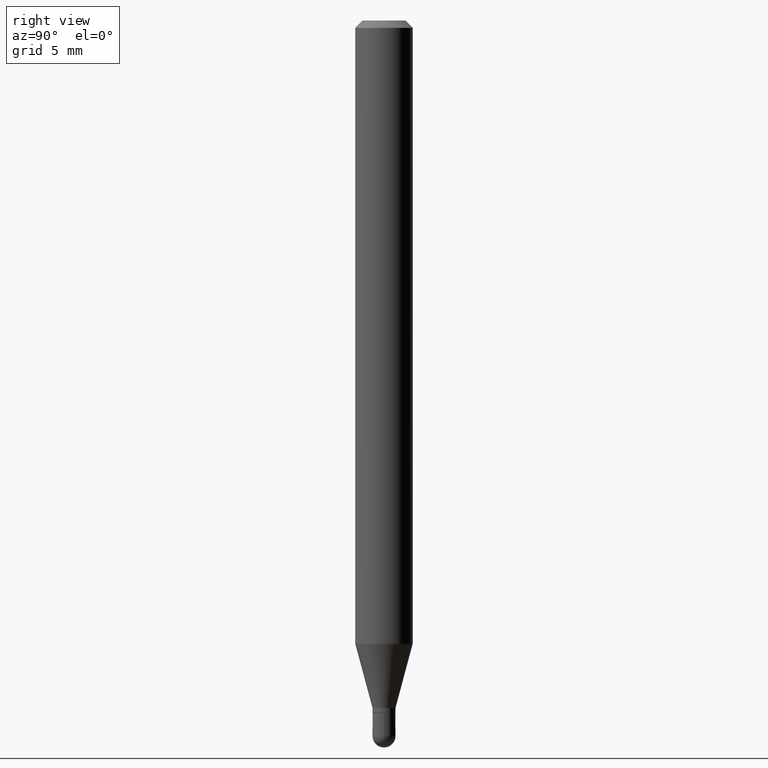
[diagram: clean part render]
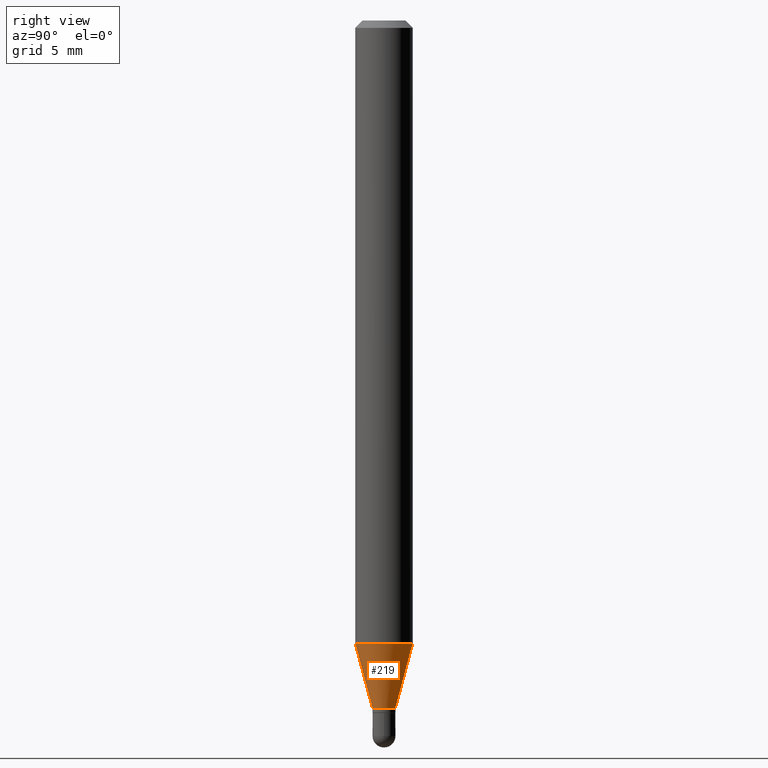
[diagram: same view with one face highlighted and labeled with its STEP entity id]
A machine part, right view. The second image highlights one B-rep face of the part: STEP entity #219.
In plain terms, the highlighted conical surface has half-angle 15 deg.
Its self-contained STEP definition (entity closure, byte-faithful):
#5 = DIRECTION ( 'NONE',  ( -2.445525843005388911E-29, 3.491399658870209934E-15, 1.000000000000000000 ) ) ;
#20 = CARTESIAN_POINT ( 'NONE',  ( 3.460663620436925760E-29, -4.940679657267234078E-15, -1.415099999999999802 ) ) ;
#29 = ORIENTED_EDGE ( 'NONE', *, *, #31, .T. ) ;
#31 = EDGE_CURVE ( 'NONE', #331, #498, #355, .T. ) ;
#64 = CARTESIAN_POINT ( 'NONE',  ( -1.647979191933606997E-16, -0.02360000000000486015, -1.415099999999999802 ) ) ;
#86 = DIRECTION ( 'NONE',  ( 1.839019923739603471E-15, 0.2588190451025254024, 0.9659258262890670910 ) ) ;
#95 = DIRECTION ( 'NONE',  ( -6.982962677686265922E-15, -1.000000000000000000, 0.000000000000000000 ) ) ;
#100 = ORIENTED_EDGE ( 'NONE', *, *, #160, .T. ) ;
#140 = CARTESIAN_POINT ( 'NONE',  ( 2.936317855528941933E-16, 0.02359999999999497916, -1.415099999999999802 ) ) ;
#145 = ORIENTED_EDGE ( 'NONE', *, *, #179, .F. ) ;
#147 = DIRECTION ( 'NONE',  ( -6.982962677686265922E-15, -1.000000000000000000, 0.000000000000000000 ) ) ;
#153 = DIRECTION ( 'NONE',  ( -2.445525843005388911E-29, 3.491399658870209934E-15, 1.000000000000000000 ) ) ;
#160 = EDGE_CURVE ( 'NONE', #498, #378, #448, .T. ) ;
#171 = CARTESIAN_POINT ( 'NONE',  ( -1.647979191933606997E-16, -0.02360000000000486015, -1.415099999999999802 ) ) ;
#179 = EDGE_CURVE ( 'NONE', #367, #378, #444, .T. ) ;
#192 = FACE_OUTER_BOUND ( 'NONE', #230, .T. ) ;
#213 = CARTESIAN_POINT ( 'NONE',  ( 4.195754854663702585E-16, 0.05904999999999549498, -1.282798798871683799 ) ) ;
#219 = ADVANCED_FACE ( 'NONE', ( #192 ), #322, .T. ) ;
#228 = LINE ( 'NONE', #64, #423 ) ;
#230 = EDGE_LOOP ( 'NONE', ( #29, #100, #145, #415 ) ) ;
#254 = CARTESIAN_POINT ( 'NONE',  ( -4.123439461173428234E-16, -0.05905000000000449473, -1.282798798871683355 ) ) ;
#260 = AXIS2_PLACEMENT_3D ( 'NONE', #395, #153, #286 ) ;
#286 = DIRECTION ( 'NONE',  ( -6.982962677686265922E-15, -1.000000000000000000, 4.626330217890369336E-15 ) ) ;
#290 = AXIS2_PLACEMENT_3D ( 'NONE', #20, #454, #95 ) ;
#322 = CONICAL_SURFACE ( 'NONE', #384, 0.02359999999999991965, 0.2617993877991507401 ) ;
#331 = VERTEX_POINT ( 'NONE', #171 ) ;
#354 = VECTOR ( 'NONE', #86, 39.37007874015748143 ) ;
#355 = CIRCLE ( 'NONE', #290, 0.02359999999999991965 ) ;
#359 = CARTESIAN_POINT ( 'NONE',  ( 3.460663620436925760E-29, -4.940679657267234078E-15, -1.415099999999999802 ) ) ;
#367 = VERTEX_POINT ( 'NONE', #254 ) ;
#378 = VERTEX_POINT ( 'NONE', #213 ) ;
#384 = AXIS2_PLACEMENT_3D ( 'NONE', #359, #5, #147 ) ;
#386 = DIRECTION ( 'NONE',  ( -1.807323732225332900E-15, -0.2588190451025185745, 0.9659258262890687563 ) ) ;
#395 = CARTESIAN_POINT ( 'NONE',  ( 3.137117614016974443E-29, -4.478763288779711488E-15, -1.282798798871683577 ) ) ;
#415 = ORIENTED_EDGE ( 'NONE', *, *, #506, .F. ) ;
#423 = VECTOR ( 'NONE', #386, 39.37007874015748854 ) ;
#441 = CARTESIAN_POINT ( 'NONE',  ( 1.676880856394176596E-16, 0.02359999999999498263, -1.415099999999999802 ) ) ;
#444 = CIRCLE ( 'NONE', #260, 0.05904999999999999832 ) ;
#448 = LINE ( 'NONE', #441, #354 ) ;
#454 = DIRECTION ( 'NONE',  ( -2.445525843005388911E-29, 3.491399658870209934E-15, 1.000000000000000000 ) ) ;
#498 = VERTEX_POINT ( 'NONE', #140 ) ;
#506 = EDGE_CURVE ( 'NONE', #331, #367, #228, .T. ) ;